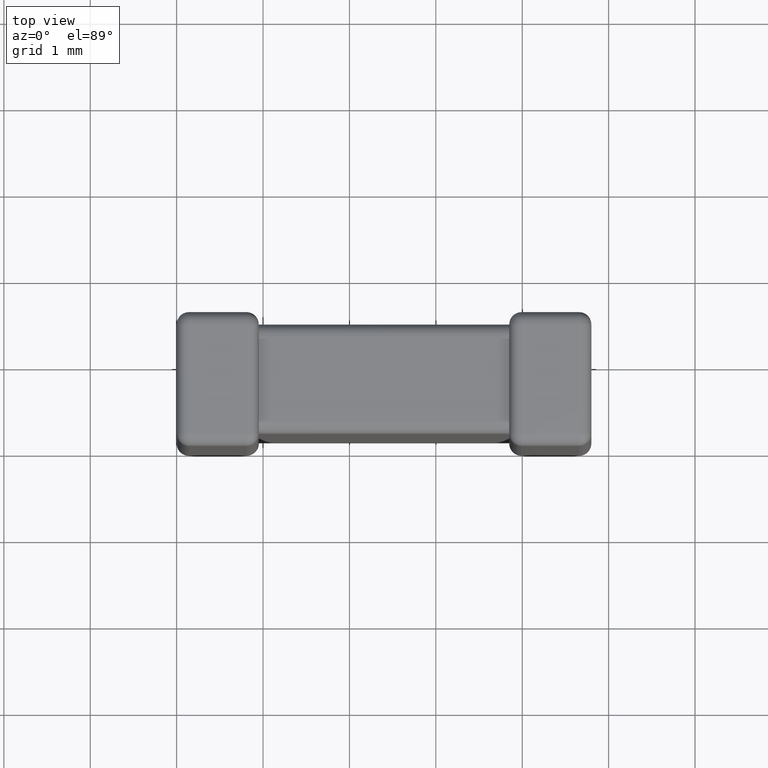
[diagram: clean part render]
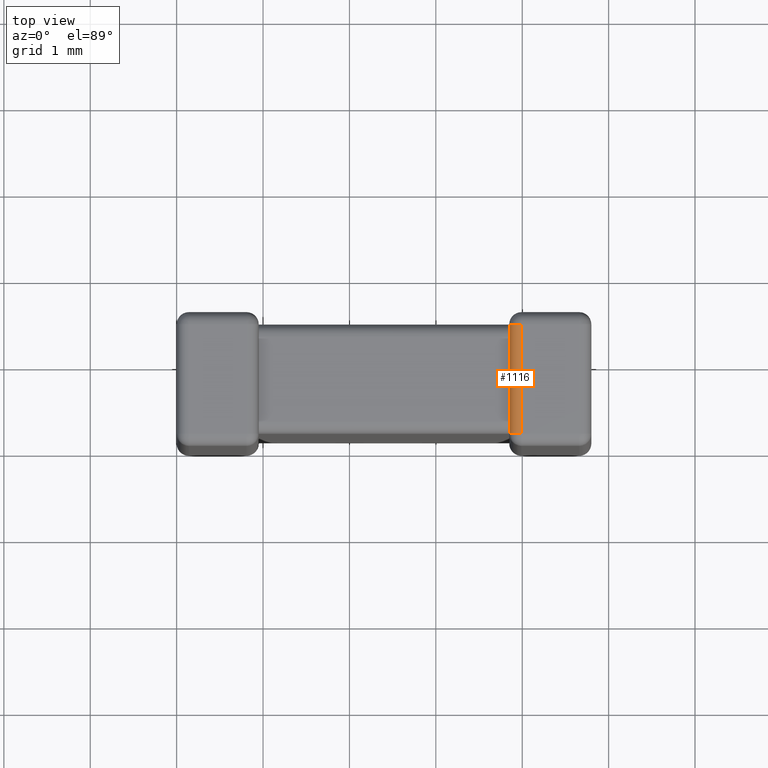
[diagram: same view with one face highlighted and labeled with its STEP entity id]
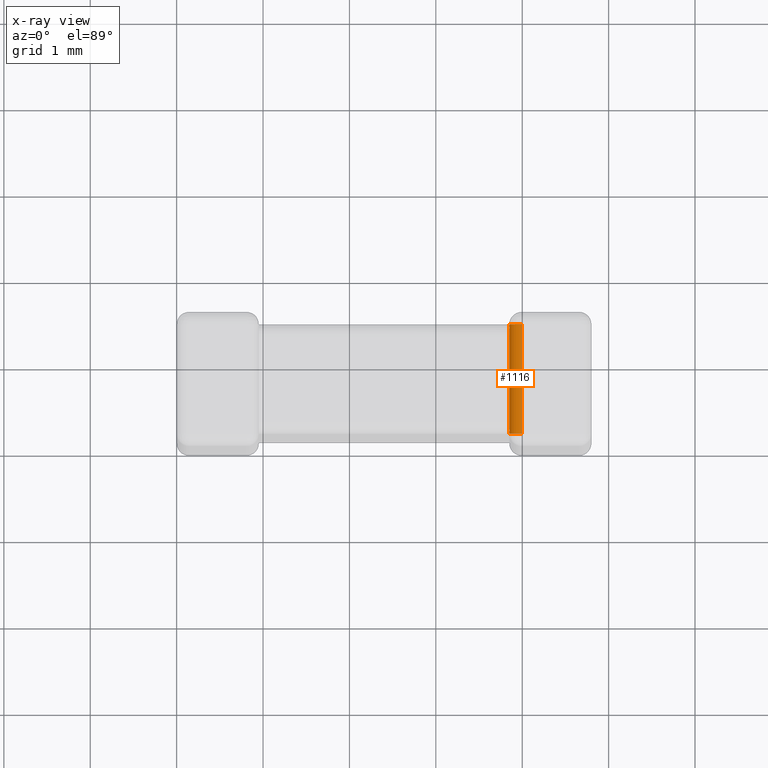
[diagram: x-ray of the same camera — body ghosted, the highlighted face saturated]
A machine part, top view. The second image highlights one B-rep face of the part: STEP entity #1116.
The next image is the same camera in x-ray: the body ghosted, the highlighted face saturated — about 0% of this face is hidden behind the body in this view.
In plain terms, the highlighted cylindrical surface (edge-blend (fillet) strip) has radius 0.1414 mm, axis along (-0, 1, 0).
Its self-contained STEP definition (entity closure, byte-faithful):
#2 = CARTESIAN_POINT ( 'NONE',  ( 3.849999999999999600, 0.2671904947927984400, -0.1414399999999996200 ) ) ;
#86 = CARTESIAN_POINT ( 'NONE',  ( 3.856202828911188300, 1.367133183131025200, -0.1828668168689741600 ) ) ;
#92 = CARTESIAN_POINT ( 'NONE',  ( 3.991439999999999900, 1.408559999999999600, -0.1414399999999996200 ) ) ;
#115 = CARTESIAN_POINT ( 'NONE',  ( 3.851187386457531200, 0.2074505420787895700, -0.1622240964204377200 ) ) ;
#172 = VERTEX_POINT ( 'NONE', #1816 ) ;
#201 = ORIENTED_EDGE ( 'NONE', *, *, #3240, .T. ) ;
#215 = DIRECTION ( 'NONE',  ( -0.0000000000000000000, 1.000000000000000000, -0.0000000000000000000 ) ) ;
#221 = ORIENTED_EDGE ( 'NONE', *, *, #556, .F. ) ;
#226 = VERTEX_POINT ( 'NONE', #3443 ) ;
#328 = CARTESIAN_POINT ( 'NONE',  ( 3.849999999999999600, 0.0000000000000000000, -0.1414399999999996200 ) ) ;
#351 = EDGE_CURVE ( 'NONE', #1136, #1554, #1156, .T. ) ;
#427 = CARTESIAN_POINT ( 'NONE',  ( 3.991439999999999900, 1.408559999999999600, 0.0000000000000000000 ) ) ;
#437 = CARTESIAN_POINT ( 'NONE',  ( 3.850010621445682600, 1.289195413809803200, -0.1431733440915353200 ) ) ;
#549 = ORIENTED_EDGE ( 'NONE', *, *, #3933, .F. ) ;
#556 = EDGE_CURVE ( 'NONE', #3089, #2177, #2506, .T. ) ;
#777 = DIRECTION ( 'NONE',  ( 0.0000000000000000000, 0.0000000000000000000, 1.000000000000000000 ) ) ;
#813 = DIRECTION ( 'NONE',  ( -0.0000000000000000000, 1.000000000000000000, 0.0000000000000000000 ) ) ;
#830 = CARTESIAN_POINT ( 'NONE',  ( 3.850502746827255700, 0.2216338927552030400, -0.1544245795194550700 ) ) ;
#832 = B_SPLINE_CURVE_WITH_KNOTS ( 'NONE', 3,
 ( #86, #1575, #2580, #1889, #2604, #3313, #437, #2950, #2633, #850 ),
 .UNSPECIFIED., .F., .F.,
 ( 4, 3, 3, 4 ),
 ( 0.0000000000000000000, 4.451920222699615400E-005, 8.880359163891180900E-005, 0.0001106962684863522500 ),
 .UNSPECIFIED. ) ;
#850 = CARTESIAN_POINT ( 'NONE',  ( 3.849999999999999600, 1.267119999999999600, -0.1414399999999996200 ) ) ;
#854 = EDGE_LOOP ( 'NONE', ( #1192, #4490, #2993, #1563, #201, #221, #1594, #549 ) ) ;
#883 = DIRECTION ( 'NONE',  ( -0.0000000000000000000, -1.000000000000000000, -0.0000000000000000000 ) ) ;
#973 = CARTESIAN_POINT ( 'NONE',  ( 3.852082918365226300, 0.1694174357799787500, -0.1694174357799783400 ) ) ;
#1002 = CARTESIAN_POINT ( 'NONE',  ( 3.850000000000000100, 0.1555062544617880900, -0.1555062544617877000 ) ) ;
#1116 = ADVANCED_FACE ( 'NONE', ( #1491 ), #1884, .T. ) ;
#1118 = DIRECTION ( 'NONE',  ( 0.0000000000000000000, 0.0000000000000000000, 1.000000000000000000 ) ) ;
#1136 = VERTEX_POINT ( 'NONE', #427 ) ;
#1156 = LINE ( 'NONE', #4157, #3747 ) ;
#1170 =( BOUNDED_CURVE ( )  B_SPLINE_CURVE ( 3, ( #4388, #2925, #4066, #4426 ),
 .UNSPECIFIED., .F., .F. ) 
 B_SPLINE_CURVE_WITH_KNOTS ( ( 4, 4 ),
 ( 1.570796326794896600, 1.868047688116102600 ),
 .UNSPECIFIED. ) 
 CURVE ( )  GEOMETRIC_REPRESENTATION_ITEM ( )  RATIONAL_B_SPLINE_CURVE ( ( 1.000000000000000000, 0.9926503465430338600, 0.9926503465430338600, 1.000000000000000000 ) ) 
 REPRESENTATION_ITEM ( '' )  );
#1192 = ORIENTED_EDGE ( 'NONE', *, *, #2325, .T. ) ;
#1328 = DIRECTION ( 'NONE',  ( 0.0000000000000000000, 0.0000000000000000000, -1.000000000000000000 ) ) ;
#1491 = FACE_OUTER_BOUND ( 'NONE', #854, .T. ) ;
#1554 = VERTEX_POINT ( 'NONE', #2407 ) ;
#1563 = ORIENTED_EDGE ( 'NONE', *, *, #2212, .T. ) ;
#1575 = CARTESIAN_POINT ( 'NONE',  ( 3.853061305930900000, 1.356877732365681100, -0.1726113661036302600 ) ) ;
#1593 = AXIS2_PLACEMENT_3D ( 'NONE', #3672, #813, #777 ) ;
#1594 = ORIENTED_EDGE ( 'NONE', *, *, #3722, .T. ) ;
#1810 = CARTESIAN_POINT ( 'NONE',  ( 3.849999999999999600, 0.2828800000000000800, -0.1414399999999996200 ) ) ;
#1816 = CARTESIAN_POINT ( 'NONE',  ( 3.856202828911188300, 0.1828668168689747400, -0.1828668168689743800 ) ) ;
#1884 = CYLINDRICAL_SURFACE ( 'NONE', #1593, 0.1414400000000000100 ) ;
#1889 = CARTESIAN_POINT ( 'NONE',  ( 3.850845484827031500, 1.331383379900236400, -0.1568820174613971800 ) ) ;
#1914 = CARTESIAN_POINT ( 'NONE',  ( 3.856202828911188300, 0.1828668168689747400, -0.1828668168689743800 ) ) ;
#2031 = CARTESIAN_POINT ( 'NONE',  ( 3.991439999999999900, 0.1414400000000000100, -0.1414400000000000100 ) ) ;
#2164 = DIRECTION ( 'NONE',  ( -0.0000000000000000000, 1.000000000000000000, -0.0000000000000000000 ) ) ;
#2177 = VERTEX_POINT ( 'NONE', #3611 ) ;
#2212 = EDGE_CURVE ( 'NONE', #3385, #226, #1170, .T. ) ;
#2246 = CARTESIAN_POINT ( 'NONE',  ( 3.853311573903213500, 0.1952362842754873100, -0.1718671507707288900 ) ) ;
#2264 = CARTESIAN_POINT ( 'NONE',  ( 3.854069095824199200, 0.1908804690420535200, -0.1753060304564411100 ) ) ;
#2325 = EDGE_CURVE ( 'NONE', #2537, #1554, #3492, .T. ) ;
#2407 = CARTESIAN_POINT ( 'NONE',  ( 3.991439999999999900, 0.1414400000000000100, 0.0000000000000000000 ) ) ;
#2486 = CIRCLE ( 'NONE', #4417, 0.1414400000000000100 ) ;
#2506 = LINE ( 'NONE', #328, #4137 ) ;
#2537 = VERTEX_POINT ( 'NONE', #3869 ) ;
#2580 = CARTESIAN_POINT ( 'NONE',  ( 3.851585112245834400, 1.344586524200364700, -0.1636160830467478000 ) ) ;
#2595 = CARTESIAN_POINT ( 'NONE',  ( 3.855017084261581000, 0.1867376610226301700, -0.1789959727146599200 ) ) ;
#2604 = CARTESIAN_POINT ( 'NONE',  ( 3.850108382579295000, 1.318225312617425000, -0.1501709427321720700 ) ) ;
#2633 = CARTESIAN_POINT ( 'NONE',  ( 3.849999999999999600, 1.274501120732643800, -0.1414399999999992300 ) ) ;
#2925 = CARTESIAN_POINT ( 'NONE',  ( 3.850000000000000100, 1.394493745538211800, -0.1555062544617877000 ) ) ;
#2950 = CARTESIAN_POINT ( 'NONE',  ( 3.849996502467356600, 1.281904761887789900, -0.1420213291279309200 ) ) ;
#2993 = ORIENTED_EDGE ( 'NONE', *, *, #4535, .F. ) ;
#3089 = VERTEX_POINT ( 'NONE', #1810 ) ;
#3155 = CARTESIAN_POINT ( 'NONE',  ( 3.849999999999999600, 0.1414400000000000700, -0.1414399999999996200 ) ) ;
#3240 = EDGE_CURVE ( 'NONE', #226, #2177, #832, .T. ) ;
#3313 = CARTESIAN_POINT ( 'NONE',  ( 3.850038910720456500, 1.303803216919454900, -0.1454815612369588000 ) ) ;
#3359 = CARTESIAN_POINT ( 'NONE',  ( 3.850216985181977400, 0.2364681007225140600, -0.1492715825800762000 ) ) ;
#3385 = VERTEX_POINT ( 'NONE', #4501 ) ;
#3443 = CARTESIAN_POINT ( 'NONE',  ( 3.856202828911188300, 1.367133183131025200, -0.1828668168689741600 ) ) ;
#3467 = AXIS2_PLACEMENT_3D ( 'NONE', #2031, #215, #1328 ) ;
#3492 = CIRCLE ( 'NONE', #3467, 0.1414400000000000100 ) ;
#3512 = CARTESIAN_POINT ( 'NONE',  ( 3.856202828911188300, 0.1828668168689747400, -0.1828668168689743800 ) ) ;
#3611 = CARTESIAN_POINT ( 'NONE',  ( 3.849999999999999600, 1.267119999999999600, -0.1414399999999996200 ) ) ;
#3672 = CARTESIAN_POINT ( 'NONE',  ( 3.991439999999999900, 1.549999999999999800, -0.1414399999999996200 ) ) ;
#3676 = CARTESIAN_POINT ( 'NONE',  ( 3.849999999999999600, 0.2828800000000000800, -0.1414399999999996200 ) ) ;
#3703 = DIRECTION ( 'NONE',  ( 0.0000000000000000000, 1.000000000000000000, -0.0000000000000000000 ) ) ;
#3722 = EDGE_CURVE ( 'NONE', #3089, #172, #4032, .T. ) ;
#3747 = VECTOR ( 'NONE', #883, 1000.000000000000000 ) ;
#3768 =( BOUNDED_CURVE ( )  B_SPLINE_CURVE ( 3, ( #3155, #1002, #973, #3512 ),
 .UNSPECIFIED., .F., .F. ) 
 B_SPLINE_CURVE_WITH_KNOTS ( ( 4, 4 ),
 ( 4.712388980384689700, 5.009640341705896600 ),
 .UNSPECIFIED. ) 
 CURVE ( )  GEOMETRIC_REPRESENTATION_ITEM ( )  RATIONAL_B_SPLINE_CURVE ( ( 1.000000000000000000, 0.9926503465430338600, 0.9926503465430338600, 1.000000000000000000 ) ) 
 REPRESENTATION_ITEM ( '' )  );
#3869 = CARTESIAN_POINT ( 'NONE',  ( 3.849999999999999600, 0.1414400000000000700, -0.1414399999999996200 ) ) ;
#3933 = EDGE_CURVE ( 'NONE', #2537, #172, #3768, .T. ) ;
#4032 = B_SPLINE_CURVE_WITH_KNOTS ( 'NONE', 3,
 ( #3676, #2, #4088, #3359, #830, #115, #2246, #2264, #2595, #1914 ),
 .UNSPECIFIED., .F., .F.,
 ( 4, 3, 3, 4 ),
 ( 0.0000000000000000000, 4.706851562163333200E-005, 9.423423122560616000E-005, 0.0001108211686374259000 ),
 .UNSPECIFIED. ) ;
#4066 = CARTESIAN_POINT ( 'NONE',  ( 3.852082918365226300, 1.380582564220020900, -0.1694174357799782500 ) ) ;
#4088 = CARTESIAN_POINT ( 'NONE',  ( 3.849931529625211500, 0.2512864192913324400, -0.1441241051818809000 ) ) ;
#4137 = VECTOR ( 'NONE', #2164, 1000.000000000000000 ) ;
#4157 = CARTESIAN_POINT ( 'NONE',  ( 3.991439999999999900, 0.0000000000000000000, 0.0000000000000000000 ) ) ;
#4388 = CARTESIAN_POINT ( 'NONE',  ( 3.849999999999999600, 1.408559999999999600, -0.1414399999999996200 ) ) ;
#4417 = AXIS2_PLACEMENT_3D ( 'NONE', #92, #3703, #1118 ) ;
#4426 = CARTESIAN_POINT ( 'NONE',  ( 3.856202828911188300, 1.367133183131025200, -0.1828668168689741600 ) ) ;
#4490 = ORIENTED_EDGE ( 'NONE', *, *, #351, .F. ) ;
#4501 = CARTESIAN_POINT ( 'NONE',  ( 3.849999999999999600, 1.408559999999999600, -0.1414399999999996200 ) ) ;
#4535 = EDGE_CURVE ( 'NONE', #3385, #1136, #2486, .T. ) ;